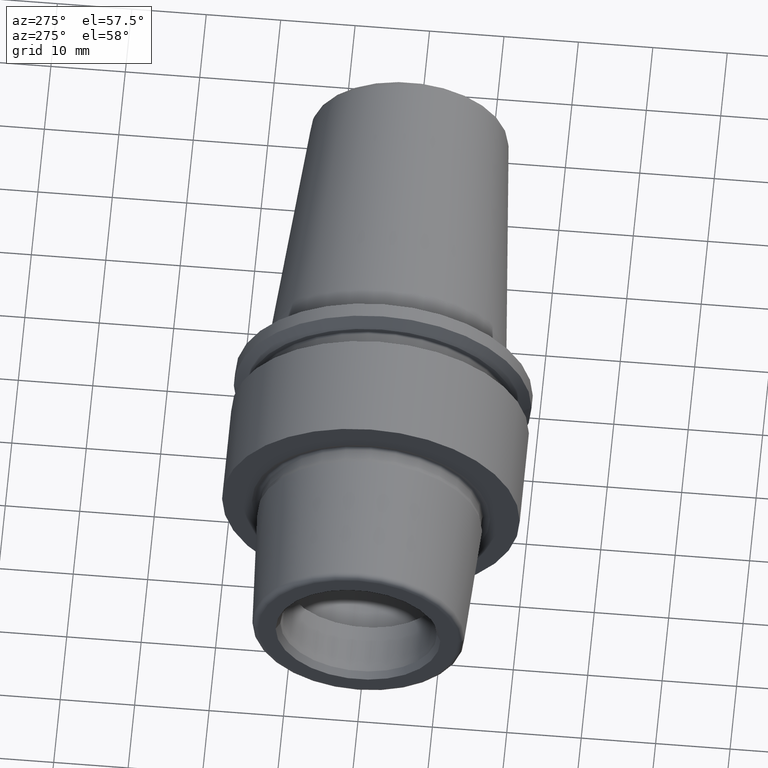
[diagram: clean part render]
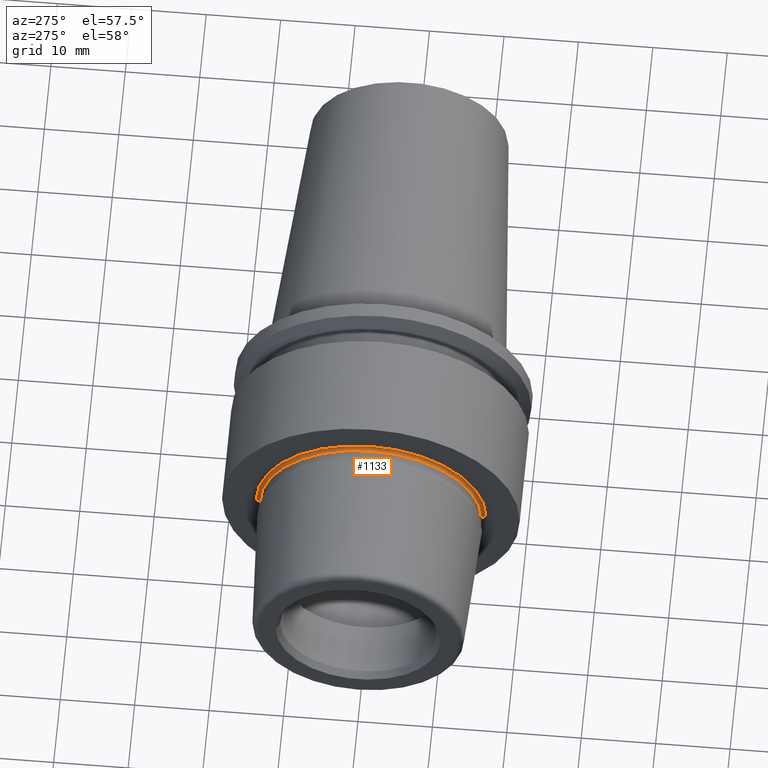
[diagram: same view with one face highlighted and labeled with its STEP entity id]
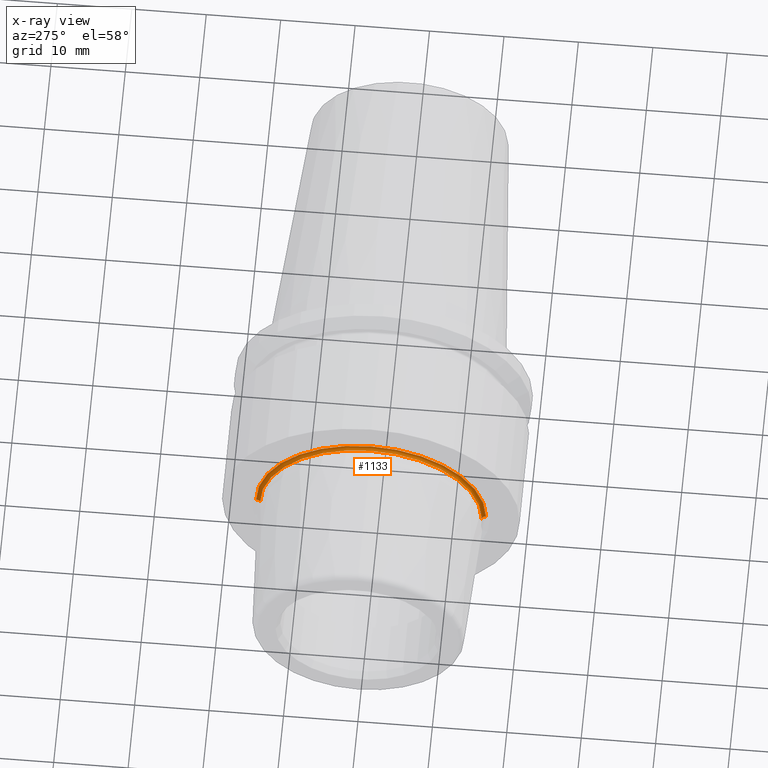
[diagram: x-ray of the same camera — body ghosted, the highlighted face saturated]
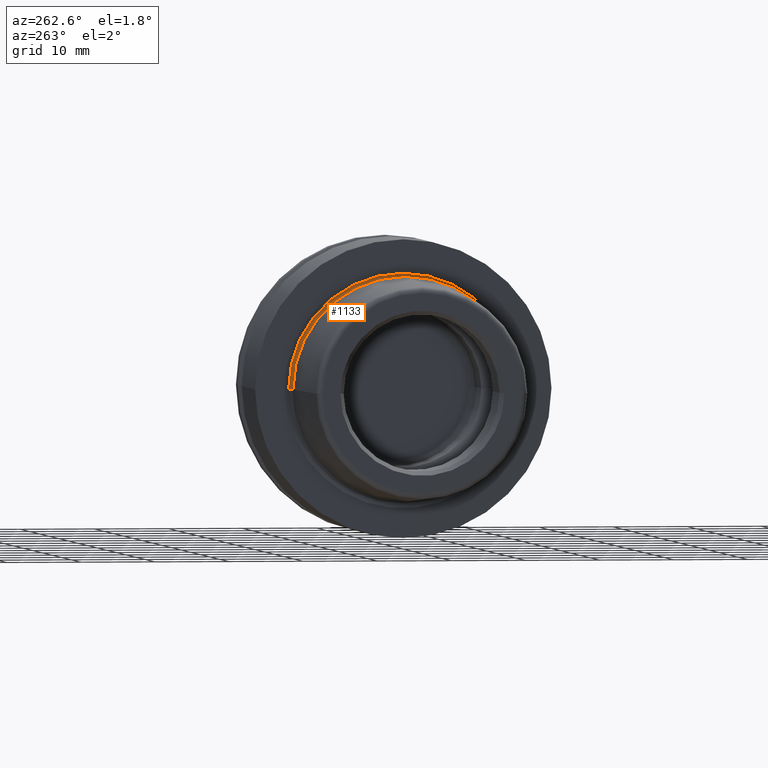
[diagram: same view with one face highlighted and labeled with its STEP entity id]
A machine part, auxiliary view. The second image highlights one B-rep face of the part: STEP entity #1133.
The next image is the same camera in x-ray: the body ghosted, the highlighted face saturated — about 0% of this face is hidden behind the body in this view.
A second angle (auxiliary view) of the same face is appended — the face is thin or edge-on in the first view.
In plain terms, the highlighted toroidal blend (fillet) surface has major radius 15.3037 mm and minor (blend) radius 0.4 mm.
Its self-contained STEP definition (entity closure, byte-faithful):
#248=CARTESIAN_POINT('',(-1.541771632753E-1,0.E0,0.E0));
#249=DIRECTION('',(-1.E0,0.E0,0.E0));
#250=DIRECTION('',(0.E0,-1.E0,0.E0));
#251=AXIS2_PLACEMENT_3D('',#248,#249,#250);
#266=CARTESIAN_POINT('',(-1.541771632753E-1,1.53037E1,0.E0));
#267=DIRECTION('',(0.E0,0.E0,-1.E0));
#268=DIRECTION('',(9.304175679820E-1,3.665012267243E-1,0.E0));
#269=AXIS2_PLACEMENT_3D('',#266,#267,#268);
#271=CARTESIAN_POINT('',(-1.541771632753E-1,-1.53037E1,0.E0));
#272=DIRECTION('',(0.E0,0.E0,1.E0));
#273=DIRECTION('',(9.304175679820E-1,-3.665012267243E-1,0.E0));
#274=AXIS2_PLACEMENT_3D('',#271,#272,#273);
#281=CARTESIAN_POINT('',(2.179898639175E-1,0.E0,0.E0));
#282=DIRECTION('',(-1.E0,0.E0,0.E0));
#283=DIRECTION('',(0.E0,-1.E0,0.E0));
#284=AXIS2_PLACEMENT_3D('',#281,#282,#283);
#578=CARTESIAN_POINT('',(2.179898639175E-1,-1.545030049069E1,0.E0));
#579=CARTESIAN_POINT('',(-1.541771632753E-1,-1.49037E1,0.E0));
#580=VERTEX_POINT('',#578);
#581=VERTEX_POINT('',#579);
#586=CARTESIAN_POINT('',(2.179898639175E-1,1.545030049069E1,0.E0));
#587=CARTESIAN_POINT('',(-1.541771632753E-1,1.49037E1,0.E0));
#588=VERTEX_POINT('',#586);
#589=VERTEX_POINT('',#587);
#1121=CARTESIAN_POINT('',(-1.541771632753E-1,0.E0,0.E0));
#1122=DIRECTION('',(-1.E0,0.E0,0.E0));
#1123=DIRECTION('',(0.E0,1.E0,0.E0));
#1124=AXIS2_PLACEMENT_3D('',#1121,#1122,#1123);
#1125=TOROIDAL_SURFACE('',#1124,1.53037E1,4.E-1);
#1126=ORIENTED_EDGE('',*,*,#1114,.T.);
#1127=ORIENTED_EDGE('',*,*,#1088,.T.);
#1128=ORIENTED_EDGE('',*,*,#1111,.F.);
#1130=ORIENTED_EDGE('',*,*,#1129,.F.);
#1131=EDGE_LOOP('',(#1126,#1127,#1128,#1130));
#1132=FACE_OUTER_BOUND('',#1131,.F.);
#1133=ADVANCED_FACE('',(#1132),#1125,.F.);
#252=CIRCLE('',#251,1.49037E1);
#270=CIRCLE('',#269,4.E-1);
#275=CIRCLE('',#274,4.E-1);
#285=CIRCLE('',#284,1.545030049069E1);
#1088=EDGE_CURVE('',#581,#589,#252,.T.);
#1111=EDGE_CURVE('',#588,#589,#270,.T.);
#1114=EDGE_CURVE('',#580,#581,#275,.T.);
#1129=EDGE_CURVE('',#580,#588,#285,.T.);